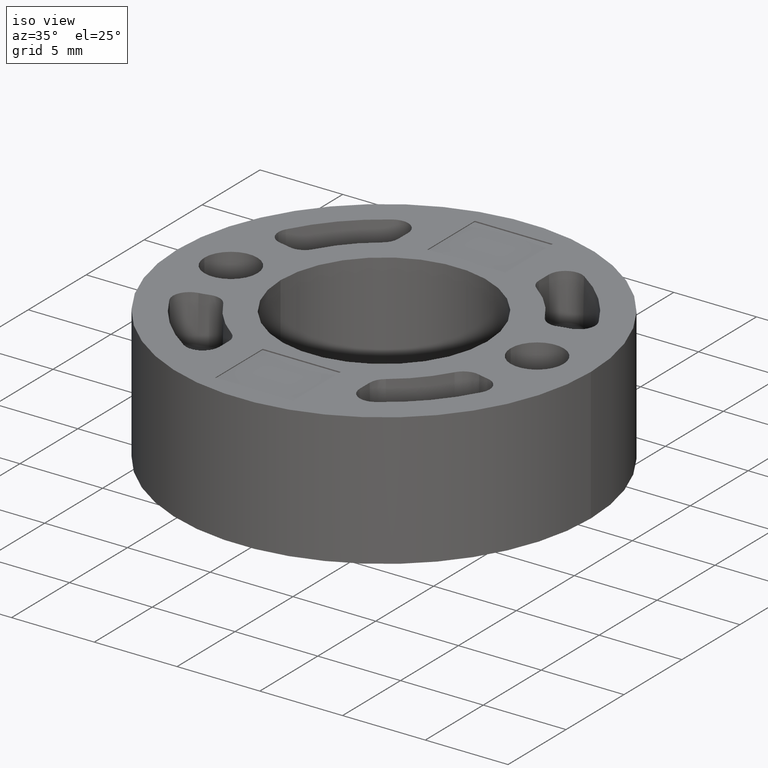
[diagram: clean part render]
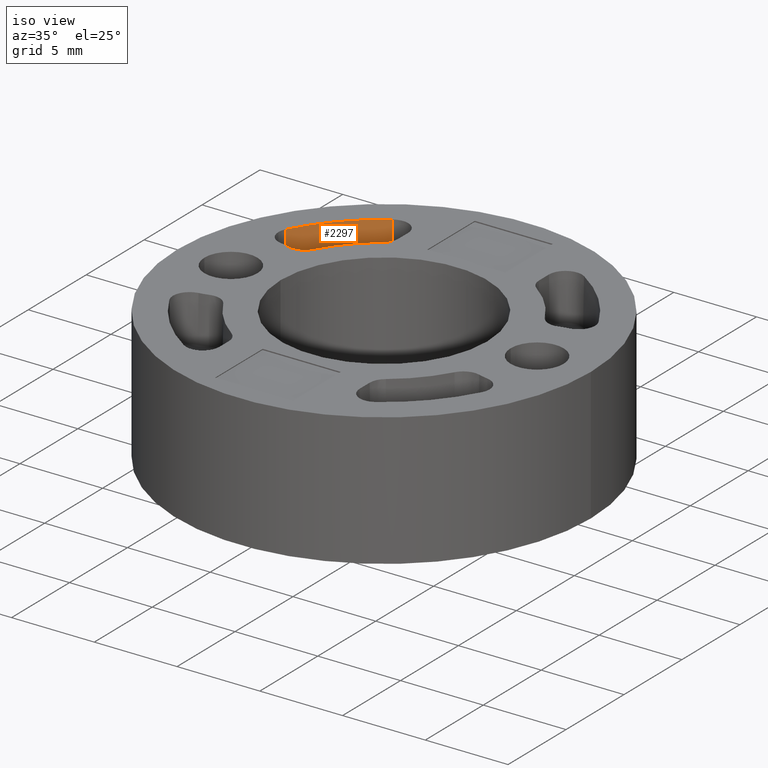
[diagram: same view with one face highlighted and labeled with its STEP entity id]
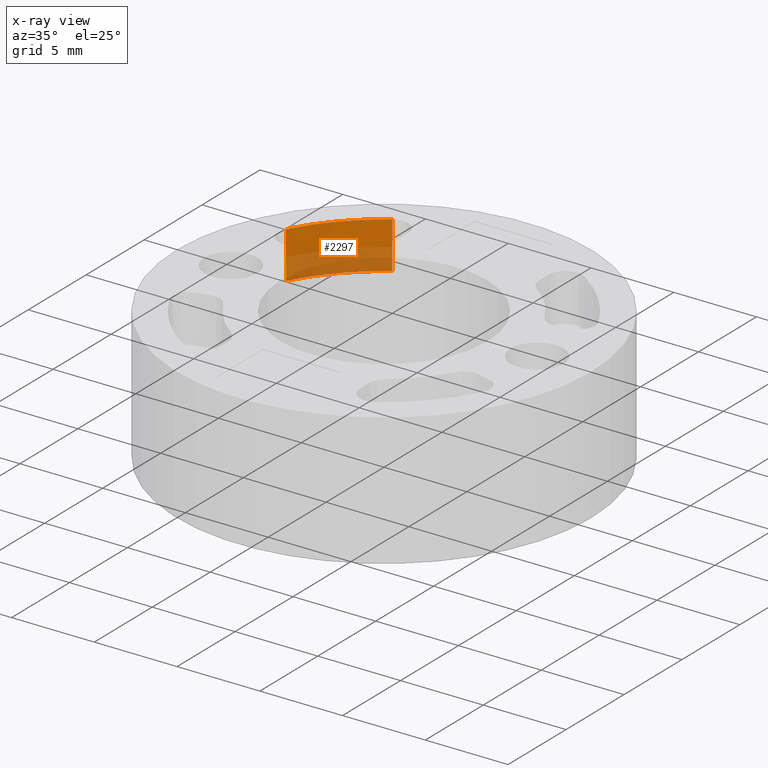
[diagram: x-ray of the same camera — body ghosted, the highlighted face saturated]
A machine part, iso view. The second image highlights one B-rep face of the part: STEP entity #2297.
The next image is the same camera in x-ray: the body ghosted, the highlighted face saturated — about 46% of this face is hidden behind the body in this view.
In plain terms, the highlighted conical surface has half-angle 1 deg.
Its self-contained STEP definition (entity closure, byte-faithful):
#418 = DIRECTION ( 'NONE',  ( -4.746415829343455000E-029, 1.143848312570467100E-029, 1.000000000000000000 ) ) ;
#419 = CARTESIAN_POINT ( 'NONE',  ( -3.451266460341926600E-028, 6.591949208711867000E-014, 7.999999999999998200 ) ) ;
#420 = AXIS2_PLACEMENT_3D ( 'NONE', #419, #418, #485 ) ;
#421 = CIRCLE ( 'NONE', #420, 10.69999999999999800 ) ;
#485 = DIRECTION ( 'NONE',  ( 1.000000000000000000, 4.607832390309649300E-030, 0.0000000000000000000 ) ) ;
#853 = CARTESIAN_POINT ( 'NONE',  ( -9.450374756199497700, 5.018009263381974200, 7.999999999999998200 ) ) ;
#949 = CARTESIAN_POINT ( 'NONE',  ( -5.791237113402056400, 8.997309191994824900, 7.999999999999998200 ) ) ;
#1283 = FACE_OUTER_BOUND ( 'NONE', #2298, .T. ) ;
#1284 = DIRECTION ( 'NONE',  ( -0.01541418516166710700, 0.008184704408466914000, 0.9998476951563911600 ) ) ;
#1285 = VECTOR ( 'NONE', #1284, 1000.000000000000200 ) ;
#1286 = CARTESIAN_POINT ( 'NONE',  ( -9.450374756199496000, 5.018009263381973300, 7.999999999999998200 ) ) ;
#1287 = LINE ( 'NONE', #1286, #1285 ) ;
#1294 = CARTESIAN_POINT ( 'NONE',  ( -9.407154652190778100, 4.995060027200923800, 5.196509518712542100 ) ) ;
#1322 = DIRECTION ( 'NONE',  ( -1.000000000000000000, -4.629002553076937100E-030, 0.0000000000000000000 ) ) ;
#1323 = DIRECTION ( 'NONE',  ( 4.746415829343455000E-029, -1.143848312570467100E-029, -1.000000000000000000 ) ) ;
#1324 = CARTESIAN_POINT ( 'NONE',  ( -1.972152263052529500E-028, 6.591949208711867000E-014, 5.196509518712420400 ) ) ;
#1325 = AXIS2_PLACEMENT_3D ( 'NONE', #1324, #1323, #1322 ) ;
#1326 = DIRECTION ( 'NONE',  ( 1.000000000000000000, 4.607832390309649300E-030, 0.0000000000000000000 ) ) ;
#1327 = DIRECTION ( 'NONE',  ( -4.746415829343455000E-029, 1.143848312570467100E-029, 1.000000000000000000 ) ) ;
#1328 = AXIS2_PLACEMENT_3D ( 'NONE', #1331, #1327, #1326 ) ;
#1329 = CONICAL_SURFACE ( 'NONE', #1328, 10.69999999999999800, 0.01745329251994333400 ) ;
#1330 = CIRCLE ( 'NONE', #1325, 10.65106489162348400 ) ;
#1331 = CARTESIAN_POINT ( 'NONE',  ( -3.451266460341926600E-028, 6.591949208711867000E-014, 7.999999999999998200 ) ) ;
#1996 = EDGE_CURVE ( 'NONE', #2181, #2132, #421, .T. ) ;
#2132 = VERTEX_POINT ( 'NONE', #853 ) ;
#2181 = VERTEX_POINT ( 'NONE', #949 ) ;
#2290 = VERTEX_POINT ( 'NONE', #1294 ) ;
#2295 = EDGE_CURVE ( 'NONE', #2290, #2132, #1287, .T. ) ;
#2297 = ADVANCED_FACE ( 'NONE', ( #1283 ), #1329, .F. ) ;
#2298 = EDGE_LOOP ( 'NONE', ( #2299, #2300, #2302, #2303 ) ) ;
#2299 = ORIENTED_EDGE ( 'NONE', *, *, #2295, .F. ) ;
#2300 = ORIENTED_EDGE ( 'NONE', *, *, #2301, .T. ) ;
#2301 = EDGE_CURVE ( 'NONE', #2290, #2391, #1330, .T. ) ;
#2302 = ORIENTED_EDGE ( 'NONE', *, *, #2390, .T. ) ;
#2303 = ORIENTED_EDGE ( 'NONE', *, *, #1996, .T. ) ;
#2390 = EDGE_CURVE ( 'NONE', #2391, #2181, #2523, .T. ) ;
#2391 = VERTEX_POINT ( 'NONE', #2519 ) ;
#2519 = CARTESIAN_POINT ( 'NONE',  ( -5.764751616600336500, 8.956161126536200000, 5.196509518712545600 ) ) ;
#2520 = DIRECTION ( 'NONE',  ( -0.009445890082034823600, 0.01467520531407490300, 0.9998476951563911600 ) ) ;
#2521 = VECTOR ( 'NONE', #2520, 1000.000000000000200 ) ;
#2522 = CARTESIAN_POINT ( 'NONE',  ( -5.791237113402056400, 8.997309191994826700, 7.999999999999998200 ) ) ;
#2523 = LINE ( 'NONE', #2522, #2521 ) ;